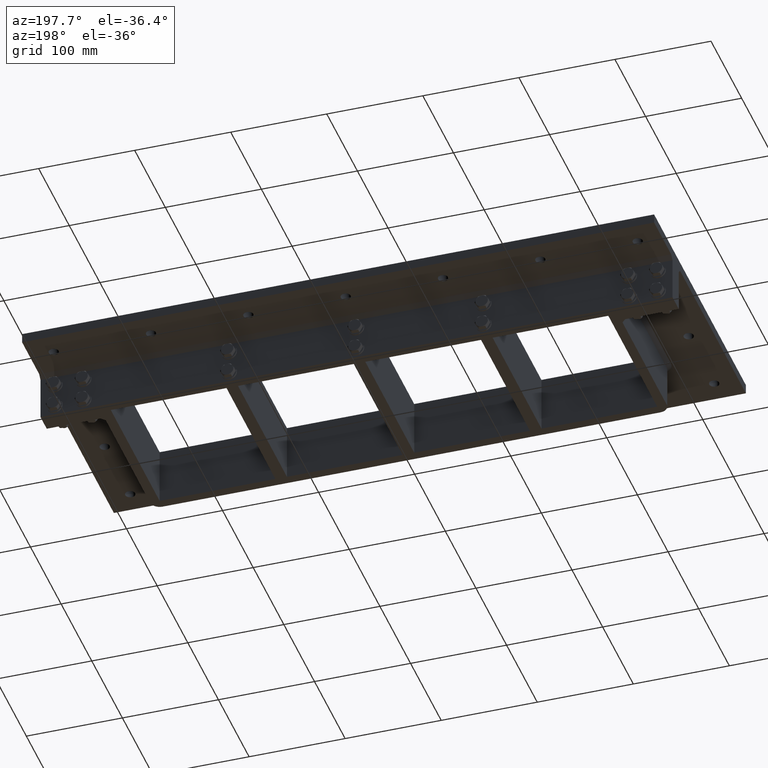
[diagram: clean part render]
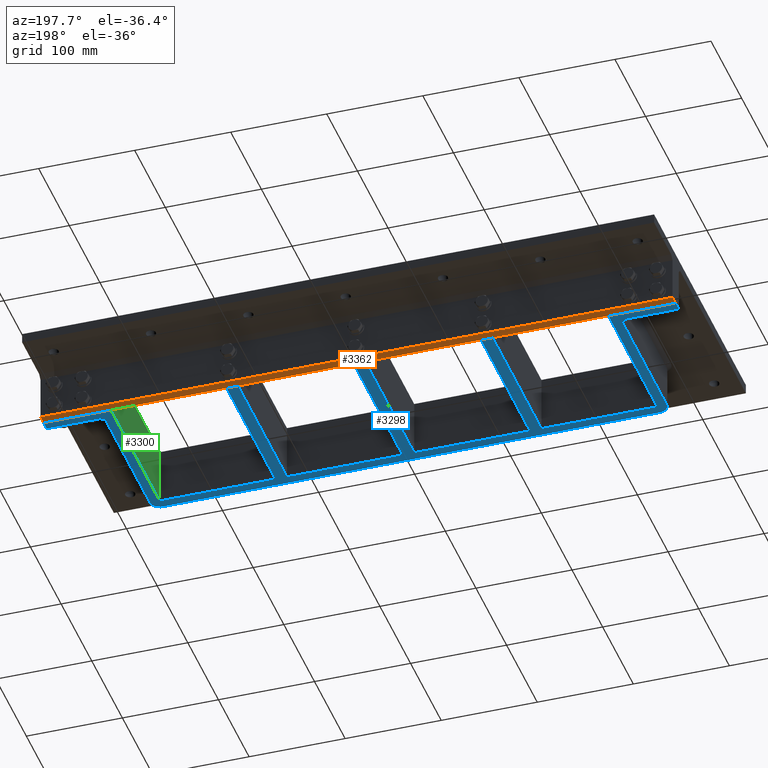
[diagram: same view with three faces highlighted in distinct colors, each labeled with its STEP entity id]
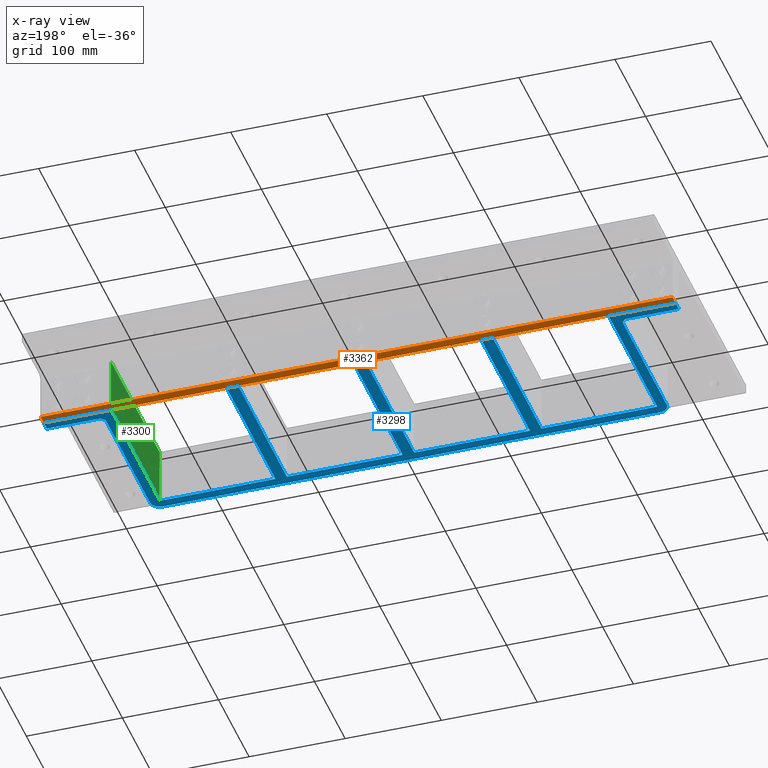
[diagram: x-ray of the same camera — body ghosted, the three highlighted faces saturated]
A machine part, auxiliary view with three faces highlighted in distinct colors.
The next image is the same camera in x-ray (body ghosted, the three faces saturated) — at least one of them is partly hidden behind the body in this view.
Their STEP definitions:

[orange] entity #3362 — the highlighted planar face has unit normal (0, 0, 1).
#655=FACE_OUTER_BOUND('',#920,.T.);
#920=EDGE_LOOP('',(#2807,#2808,#2809,#2810));
#1165=LINE('',#5417,#1424);
#1186=LINE('',#5529,#1445);
#1199=LINE('',#5568,#1458);
#1200=LINE('',#5570,#1459);
#1424=VECTOR('',#4415,10.);
#1445=VECTOR('',#4538,10.);
#1458=VECTOR('',#4583,10.);
#1459=VECTOR('',#4586,10.);
#1672=VERTEX_POINT('',#5414);
#1673=VERTEX_POINT('',#5416);
#1713=VERTEX_POINT('',#5528);
#1723=VERTEX_POINT('',#5566);
#2024=EDGE_CURVE('',#1673,#1672,#1165,.T.);
#2080=EDGE_CURVE('',#1713,#1673,#1186,.T.);
#2100=EDGE_CURVE('',#1672,#1723,#1199,.T.);
#2101=EDGE_CURVE('',#1723,#1713,#1200,.T.);
#2807=ORIENTED_EDGE('',*,*,#2101,.T.);
#2808=ORIENTED_EDGE('',*,*,#2080,.T.);
#2809=ORIENTED_EDGE('',*,*,#2024,.T.);
#2810=ORIENTED_EDGE('',*,*,#2100,.T.);
#3216=PLANE('',#3854);
#3362=ADVANCED_FACE('',(#655),#3216,.F.);
#3854=AXIS2_PLACEMENT_3D('',#5573,#4590,#4591);
#4415=DIRECTION('',(1.,1.07985218200623E-16,0.));
#4538=DIRECTION('',(0.,1.,0.));
#4583=DIRECTION('',(0.,-1.,0.));
#4586=DIRECTION('',(-1.,0.,0.));
#4590=DIRECTION('center_axis',(0.,0.,1.));
#4591=DIRECTION('ref_axis',(1.,0.,0.));
#5414=CARTESIAN_POINT('',(329.,89.7500000000001,-60.));
#5416=CARTESIAN_POINT('',(-329.,89.75,-60.));
#5417=CARTESIAN_POINT('',(-329.,89.75,-60.));
#5528=CARTESIAN_POINT('',(-329.,79.75,-60.));
#5529=CARTESIAN_POINT('',(-329.,79.75,-60.));
#5566=CARTESIAN_POINT('',(329.,79.75,-60.));
#5568=CARTESIAN_POINT('',(329.,89.7500000000001,-60.));
#5570=CARTESIAN_POINT('',(329.,79.75,-60.));
#5573=CARTESIAN_POINT('Origin',(0.,-8.88178419700125E-15,-60.));

[blue] entity #3298 — the highlighted planar face has unit normal (0, 0, 1).
#424=CIRCLE('',#3735,10.);
#425=CIRCLE('',#3736,10.);
#591=FACE_OUTER_BOUND('',#791,.T.);
#791=EDGE_LOOP('',(#2440,#2441,#2442,#2443,#2444,#2445,#2446,#2447,#2448,
#2449,#2450,#2451,#2452,#2453,#2454,#2455,#2456,#2457,#2458,#2459,#2460,
#2461,#2462,#2463,#2464,#2465,#2466,#2467));
#1038=LINE('',#5053,#1297);
#1054=LINE('',#5093,#1313);
#1061=LINE('',#5105,#1320);
#1081=LINE('',#5220,#1340);
#1085=LINE('',#5229,#1344);
#1090=LINE('',#5238,#1349);
#1093=LINE('',#5245,#1352);
#1095=LINE('',#5249,#1354);
#1096=LINE('',#5251,#1355);
#1097=LINE('',#5253,#1356);
#1098=LINE('',#5255,#1357);
#1099=LINE('',#5257,#1358);
#1100=LINE('',#5259,#1359);
#1101=LINE('',#5261,#1360);
#1102=LINE('',#5263,#1361);
#1103=LINE('',#5265,#1362);
#1104=LINE('',#5267,#1363);
#1105=LINE('',#5269,#1364);
#1106=LINE('',#5271,#1365);
#1107=LINE('',#5273,#1366);
#1108=LINE('',#5275,#1367);
#1109=LINE('',#5276,#1368);
#1110=LINE('',#5278,#1369);
#1111=LINE('',#5282,#1370);
#1112=LINE('',#5285,#1371);
#1113=LINE('',#5286,#1372);
#1297=VECTOR('',#4048,10.);
#1313=VECTOR('',#4086,10.);
#1320=VECTOR('',#4097,10.);
#1340=VECTOR('',#4223,10.);
#1344=VECTOR('',#4229,10.);
#1349=VECTOR('',#4236,10.);
#1352=VECTOR('',#4241,10.);
#1354=VECTOR('',#4245,10.);
#1355=VECTOR('',#4246,10.);
#1356=VECTOR('',#4247,10.);
#1357=VECTOR('',#4248,10.);
#1358=VECTOR('',#4249,10.);
#1359=VECTOR('',#4250,10.);
#1360=VECTOR('',#4251,10.);
#1361=VECTOR('',#4252,10.);
#1362=VECTOR('',#4253,10.);
#1363=VECTOR('',#4254,10.);
#1364=VECTOR('',#4255,10.);
#1365=VECTOR('',#4256,10.);
#1366=VECTOR('',#4257,10.);
#1367=VECTOR('',#4258,10.);
#1368=VECTOR('',#4259,10.);
#1369=VECTOR('',#4260,10.);
#1370=VECTOR('',#4263,10.);
#1371=VECTOR('',#4266,10.);
#1372=VECTOR('',#4267,10.);
#1555=VERTEX_POINT('',#5051);
#1556=VERTEX_POINT('',#5052);
#1568=VERTEX_POINT('',#5091);
#1569=VERTEX_POINT('',#5092);
#1572=VERTEX_POINT('',#5103);
#1614=VERTEX_POINT('',#5219);
#1617=VERTEX_POINT('',#5226);
#1618=VERTEX_POINT('',#5228);
#1621=VERTEX_POINT('',#5236);
#1624=VERTEX_POINT('',#5244);
#1625=VERTEX_POINT('',#5248);
#1626=VERTEX_POINT('',#5250);
#1627=VERTEX_POINT('',#5252);
#1628=VERTEX_POINT('',#5254);
#1629=VERTEX_POINT('',#5256);
#1630=VERTEX_POINT('',#5258);
#1631=VERTEX_POINT('',#5260);
#1632=VERTEX_POINT('',#5262);
#1633=VERTEX_POINT('',#5264);
#1634=VERTEX_POINT('',#5266);
#1635=VERTEX_POINT('',#5268);
#1636=VERTEX_POINT('',#5270);
#1637=VERTEX_POINT('',#5272);
#1638=VERTEX_POINT('',#5274);
#1639=VERTEX_POINT('',#5277);
#1640=VERTEX_POINT('',#5279);
#1641=VERTEX_POINT('',#5281);
#1642=VERTEX_POINT('',#5283);
#1845=EDGE_CURVE('',#1555,#1556,#1038,.T.);
#1865=EDGE_CURVE('',#1568,#1569,#1054,.T.);
#1872=EDGE_CURVE('',#1555,#1572,#1061,.T.);
#1927=EDGE_CURVE('',#1614,#1569,#1081,.T.);
#1931=EDGE_CURVE('',#1618,#1617,#1085,.T.);
#1936=EDGE_CURVE('',#1572,#1621,#1090,.T.);
#1939=EDGE_CURVE('',#1624,#1614,#1093,.T.);
#1941=EDGE_CURVE('',#1617,#1625,#1095,.T.);
#1942=EDGE_CURVE('',#1625,#1626,#1096,.T.);
#1943=EDGE_CURVE('',#1626,#1627,#1097,.T.);
#1944=EDGE_CURVE('',#1627,#1628,#1098,.T.);
#1945=EDGE_CURVE('',#1628,#1629,#1099,.T.);
#1946=EDGE_CURVE('',#1629,#1630,#1100,.T.);
#1947=EDGE_CURVE('',#1630,#1631,#1101,.T.);
#1948=EDGE_CURVE('',#1631,#1632,#1102,.T.);
#1949=EDGE_CURVE('',#1632,#1633,#1103,.T.);
#1950=EDGE_CURVE('',#1633,#1634,#1104,.T.);
#1951=EDGE_CURVE('',#1634,#1635,#1105,.T.);
#1952=EDGE_CURVE('',#1635,#1636,#1106,.T.);
#1953=EDGE_CURVE('',#1636,#1637,#1107,.T.);
#1954=EDGE_CURVE('',#1637,#1638,#1108,.T.);
#1955=EDGE_CURVE('',#1638,#1624,#1109,.T.);
#1956=EDGE_CURVE('',#1568,#1639,#1110,.T.);
#1957=EDGE_CURVE('',#1639,#1640,#424,.T.);
#1958=EDGE_CURVE('',#1640,#1641,#1111,.T.);
#1959=EDGE_CURVE('',#1641,#1642,#425,.T.);
#1960=EDGE_CURVE('',#1642,#1556,#1112,.T.);
#1961=EDGE_CURVE('',#1621,#1618,#1113,.T.);
#2440=ORIENTED_EDGE('',*,*,#1931,.T.);
#2441=ORIENTED_EDGE('',*,*,#1941,.T.);
#2442=ORIENTED_EDGE('',*,*,#1942,.T.);
#2443=ORIENTED_EDGE('',*,*,#1943,.T.);
#2444=ORIENTED_EDGE('',*,*,#1944,.T.);
#2445=ORIENTED_EDGE('',*,*,#1945,.T.);
#2446=ORIENTED_EDGE('',*,*,#1946,.T.);
#2447=ORIENTED_EDGE('',*,*,#1947,.T.);
#2448=ORIENTED_EDGE('',*,*,#1948,.T.);
#2449=ORIENTED_EDGE('',*,*,#1949,.T.);
#2450=ORIENTED_EDGE('',*,*,#1950,.T.);
#2451=ORIENTED_EDGE('',*,*,#1951,.T.);
#2452=ORIENTED_EDGE('',*,*,#1952,.T.);
#2453=ORIENTED_EDGE('',*,*,#1953,.T.);
#2454=ORIENTED_EDGE('',*,*,#1954,.T.);
#2455=ORIENTED_EDGE('',*,*,#1955,.T.);
#2456=ORIENTED_EDGE('',*,*,#1939,.T.);
#2457=ORIENTED_EDGE('',*,*,#1927,.T.);
#2458=ORIENTED_EDGE('',*,*,#1865,.F.);
#2459=ORIENTED_EDGE('',*,*,#1956,.T.);
#2460=ORIENTED_EDGE('',*,*,#1957,.T.);
#2461=ORIENTED_EDGE('',*,*,#1958,.T.);
#2462=ORIENTED_EDGE('',*,*,#1959,.T.);
#2463=ORIENTED_EDGE('',*,*,#1960,.T.);
#2464=ORIENTED_EDGE('',*,*,#1845,.F.);
#2465=ORIENTED_EDGE('',*,*,#1872,.T.);
#2466=ORIENTED_EDGE('',*,*,#1936,.T.);
#2467=ORIENTED_EDGE('',*,*,#1961,.T.);
#3186=PLANE('',#3734);
#3298=ADVANCED_FACE('',(#591),#3186,.F.);
#3734=AXIS2_PLACEMENT_3D('',#5247,#4243,#4244);
#3735=AXIS2_PLACEMENT_3D('',#5280,#4261,#4262);
#3736=AXIS2_PLACEMENT_3D('',#5284,#4264,#4265);
#4048=DIRECTION('',(0.70710678118655,-0.707106781186545,0.));
#4086=DIRECTION('',(0.707106781186545,0.70710678118655,0.));
#4097=DIRECTION('',(-1.,0.,0.));
#4223=DIRECTION('',(-1.,-1.26882631385732E-16,0.));
#4229=DIRECTION('',(2.22740669517273E-16,-1.,0.));
#4236=DIRECTION('',(-7.105427357601E-15,1.,0.));
#4241=DIRECTION('',(7.10542735760105E-15,-1.,0.));
#4243=DIRECTION('center_axis',(0.,0.,1.));
#4244=DIRECTION('ref_axis',(1.,0.,0.));
#4245=DIRECTION('',(1.,-7.37077526722096E-17,0.));
#4246=DIRECTION('',(-4.45481339034546E-16,1.,0.));
#4247=DIRECTION('',(1.,0.,0.));
#4248=DIRECTION('',(2.22740669517273E-16,-1.,0.));
#4249=DIRECTION('',(1.,-7.37077526722096E-17,0.));
#4250=DIRECTION('',(-4.45481339034546E-16,1.,0.));
#4251=DIRECTION('',(1.,0.,0.));
#4252=DIRECTION('',(2.22740669517273E-16,-1.,0.));
#4253=DIRECTION('',(1.,-7.37077526722096E-17,0.));
#4254=DIRECTION('',(-4.45481339034546E-16,1.,0.));
#4255=DIRECTION('',(1.,0.,0.));
#4256=DIRECTION('',(2.22740669517273E-16,-1.,0.));
#4257=DIRECTION('',(1.,-7.37077526722096E-17,0.));
#4258=DIRECTION('',(-4.45481339034546E-16,1.,0.));
#4259=DIRECTION('',(1.,0.,0.));
#4260=DIRECTION('',(0.,-1.,0.));
#4261=DIRECTION('center_axis',(0.,0.,-1.));
#4262=DIRECTION('ref_axis',(0.,-1.,0.));
#4263=DIRECTION('',(-1.,0.,0.));
#4264=DIRECTION('center_axis',(0.,0.,-1.));
#4265=DIRECTION('ref_axis',(-1.,0.,0.));
#4266=DIRECTION('',(4.45481339034546E-16,1.,0.));
#4267=DIRECTION('',(1.,0.,0.));
#5051=CARTESIAN_POINT('',(-273.3,69.25,-60.));
#5052=CARTESIAN_POINT('',(-269.,64.95,-60.));
#5053=CARTESIAN_POINT('',(-186.587499999999,-17.4624999999999,-60.));
#5091=CARTESIAN_POINT('',(269.,64.9500000000001,-60.));
#5092=CARTESIAN_POINT('',(273.3,69.2500000000001,-60.));
#5093=CARTESIAN_POINT('',(186.5875,-17.4625000000001,-60.));
#5103=CARTESIAN_POINT('',(-329.,69.25,-60.));
#5105=CARTESIAN_POINT('',(-329.,69.25,-60.));
#5219=CARTESIAN_POINT('',(329.,69.2500000000001,-60.));
#5220=CARTESIAN_POINT('',(259.,69.2500000000001,-60.));
#5226=CARTESIAN_POINT('',(-259.,-79.75,-60.));
#5228=CARTESIAN_POINT('',(-259.,79.25,-60.));
#5229=CARTESIAN_POINT('',(-259.,-39.875,-60.));
#5236=CARTESIAN_POINT('',(-329.,79.25,-60.));
#5238=CARTESIAN_POINT('',(-329.,79.25,-60.));
#5244=CARTESIAN_POINT('',(329.,79.25,-60.));
#5245=CARTESIAN_POINT('',(329.,69.2500000000001,-60.));
#5247=CARTESIAN_POINT('Origin',(0.,-3.5527136788005E-14,-60.));
#5248=CARTESIAN_POINT('',(-138.5,-79.75,-60.));
#5249=CARTESIAN_POINT('',(-69.25,-79.75,-60.));
#5250=CARTESIAN_POINT('',(-138.5,79.25,-60.));
#5251=CARTESIAN_POINT('',(-138.5,39.875,-60.));
#5252=CARTESIAN_POINT('',(-126.5,79.25,-60.));
#5253=CARTESIAN_POINT('',(164.5,79.25,-60.));
#5254=CARTESIAN_POINT('',(-126.5,-79.75,-60.));
#5255=CARTESIAN_POINT('',(-126.5,-39.875,-60.));
#5256=CARTESIAN_POINT('',(-6.00000000000001,-79.75,-60.));
#5257=CARTESIAN_POINT('',(-3.00000000000001,-79.75,-60.));
#5258=CARTESIAN_POINT('',(-6.00000000000009,79.25,-60.));
#5259=CARTESIAN_POINT('',(-6.00000000000007,39.875,-60.));
#5260=CARTESIAN_POINT('',(6.00000000000001,79.25,-60.));
#5261=CARTESIAN_POINT('',(164.5,79.25,-60.));
#5262=CARTESIAN_POINT('',(5.99999999999998,-79.75,-60.));
#5263=CARTESIAN_POINT('',(5.99999999999997,-39.875,-60.));
#5264=CARTESIAN_POINT('',(126.5,-79.75,-60.));
#5265=CARTESIAN_POINT('',(63.25,-79.75,-60.));
#5266=CARTESIAN_POINT('',(126.5,79.25,-60.));
#5267=CARTESIAN_POINT('',(126.5,39.875,-60.));
#5268=CARTESIAN_POINT('',(138.5,79.25,-60.));
#5269=CARTESIAN_POINT('',(164.5,79.25,-60.));
#5270=CARTESIAN_POINT('',(138.5,-79.75,-60.));
#5271=CARTESIAN_POINT('',(138.5,-39.875,-60.));
#5272=CARTESIAN_POINT('',(259.,-79.75,-60.));
#5273=CARTESIAN_POINT('',(129.5,-79.75,-60.));
#5274=CARTESIAN_POINT('',(259.,79.25,-60.));
#5275=CARTESIAN_POINT('',(259.,39.875,-60.));
#5276=CARTESIAN_POINT('',(329.,79.25,-60.));
#5277=CARTESIAN_POINT('',(269.,-79.7500000000001,-60.));
#5278=CARTESIAN_POINT('',(269.,-79.7500000000001,-60.));
#5279=CARTESIAN_POINT('',(259.,-89.7500000000001,-60.));
#5280=CARTESIAN_POINT('Origin',(259.,-79.7500000000001,-60.));
#5281=CARTESIAN_POINT('',(-259.,-89.7500000000001,-60.));
#5282=CARTESIAN_POINT('',(-259.,-89.7500000000001,-60.));
#5283=CARTESIAN_POINT('',(-269.,-79.7500000000001,-60.));
#5284=CARTESIAN_POINT('Origin',(-259.,-79.7500000000001,-60.));
#5285=CARTESIAN_POINT('',(-269.,79.7499999999999,-60.));
#5286=CARTESIAN_POINT('',(164.5,79.25,-60.));

[green] entity #3300 — the highlighted planar face has unit normal (1, 0, 0).
#593=FACE_OUTER_BOUND('',#804,.T.);
#804=EDGE_LOOP('',(#2499,#2500,#2501,#2502));
#1108=LINE('',#5275,#1367);
#1116=LINE('',#5292,#1375);
#1131=LINE('',#5342,#1390);
#1132=LINE('',#5343,#1391);
#1367=VECTOR('',#4258,10.);
#1375=VECTOR('',#4272,10.);
#1390=VECTOR('',#4311,10.);
#1391=VECTOR('',#4312,10.);
#1637=VERTEX_POINT('',#5272);
#1638=VERTEX_POINT('',#5274);
#1643=VERTEX_POINT('',#5289);
#1644=VERTEX_POINT('',#5291);
#1954=EDGE_CURVE('',#1637,#1638,#1108,.T.);
#1964=EDGE_CURVE('',#1643,#1644,#1116,.T.);
#1990=EDGE_CURVE('',#1644,#1637,#1131,.T.);
#1991=EDGE_CURVE('',#1643,#1638,#1132,.T.);
#2499=ORIENTED_EDGE('',*,*,#1954,.F.);
#2500=ORIENTED_EDGE('',*,*,#1990,.F.);
#2501=ORIENTED_EDGE('',*,*,#1964,.F.);
#2502=ORIENTED_EDGE('',*,*,#1991,.T.);
#3188=PLANE('',#3749);
#3300=ADVANCED_FACE('',(#593),#3188,.F.);
#3749=AXIS2_PLACEMENT_3D('',#5341,#4309,#4310);
#4258=DIRECTION('',(-4.45481339034546E-16,1.,0.));
#4272=DIRECTION('',(4.45481339034546E-16,-1.,0.));
#4309=DIRECTION('center_axis',(1.,4.45481339034546E-16,0.));
#4310=DIRECTION('ref_axis',(4.45481339034546E-16,-1.,0.));
#4311=DIRECTION('',(0.,0.,-1.));
#4312=DIRECTION('',(0.,0.,-1.));
#5272=CARTESIAN_POINT('',(259.,-79.75,-60.));
#5274=CARTESIAN_POINT('',(259.,79.25,-60.));
#5275=CARTESIAN_POINT('',(259.,39.875,-60.));
#5289=CARTESIAN_POINT('',(259.,79.25,0.));
#5291=CARTESIAN_POINT('',(259.,-79.75,0.));
#5292=CARTESIAN_POINT('',(259.,39.875,0.));
#5341=CARTESIAN_POINT('Origin',(259.,79.75,0.));
#5342=CARTESIAN_POINT('',(259.,-79.75,0.));
#5343=CARTESIAN_POINT('',(259.,79.25,0.));